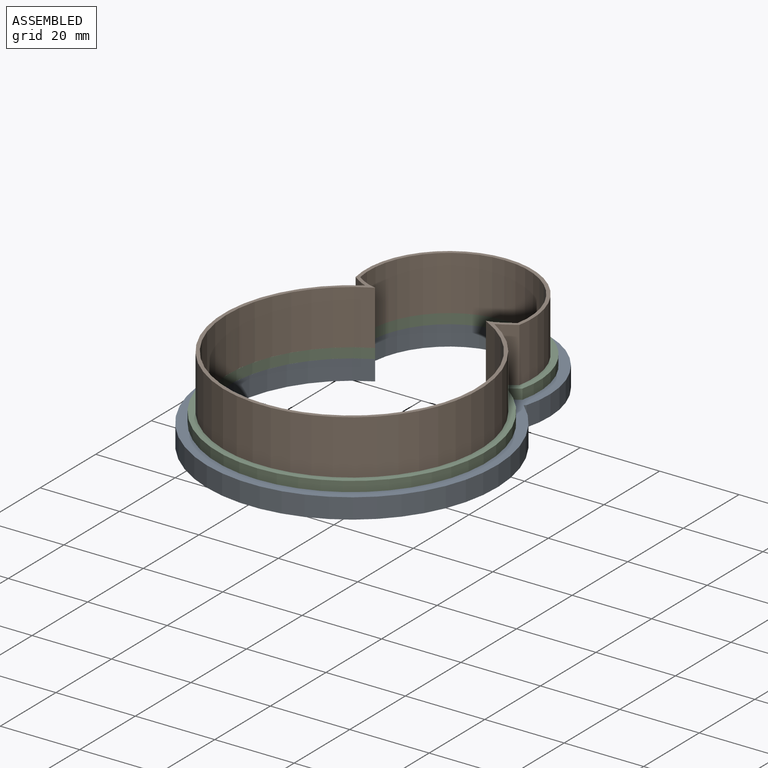
[diagram: assembled view]
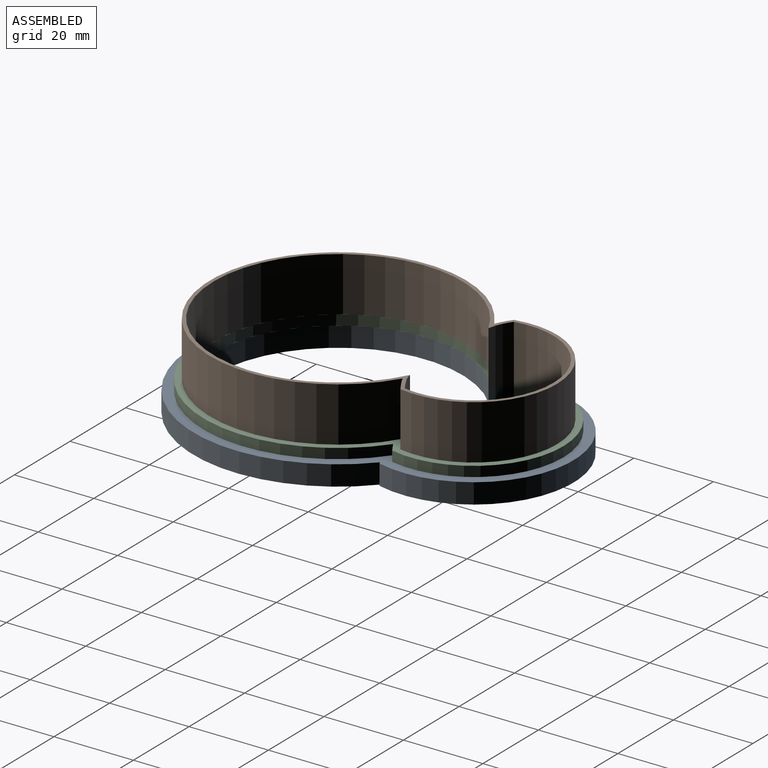
[diagram: assembled view, second angle]
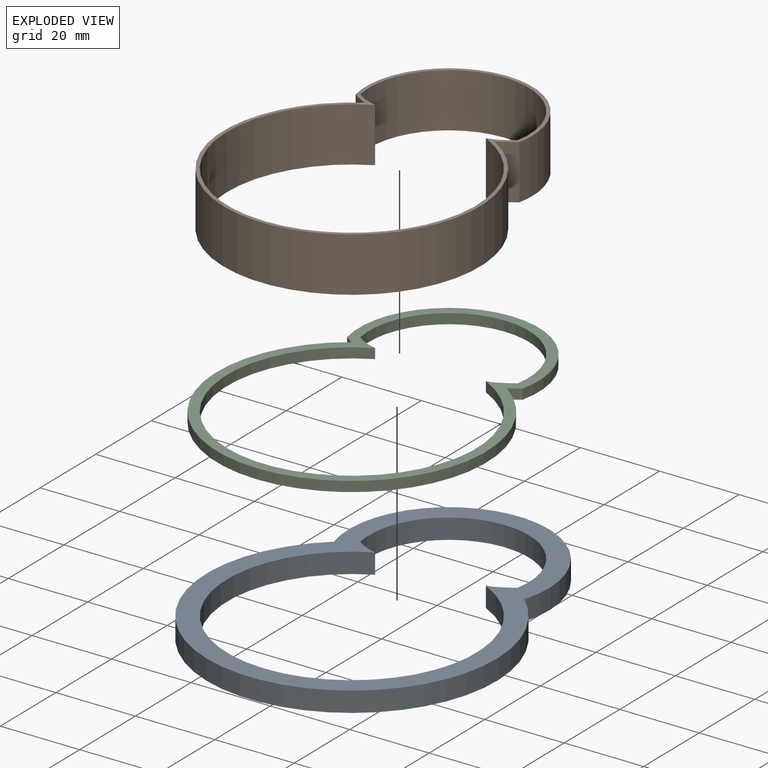
[diagram: exploded view]
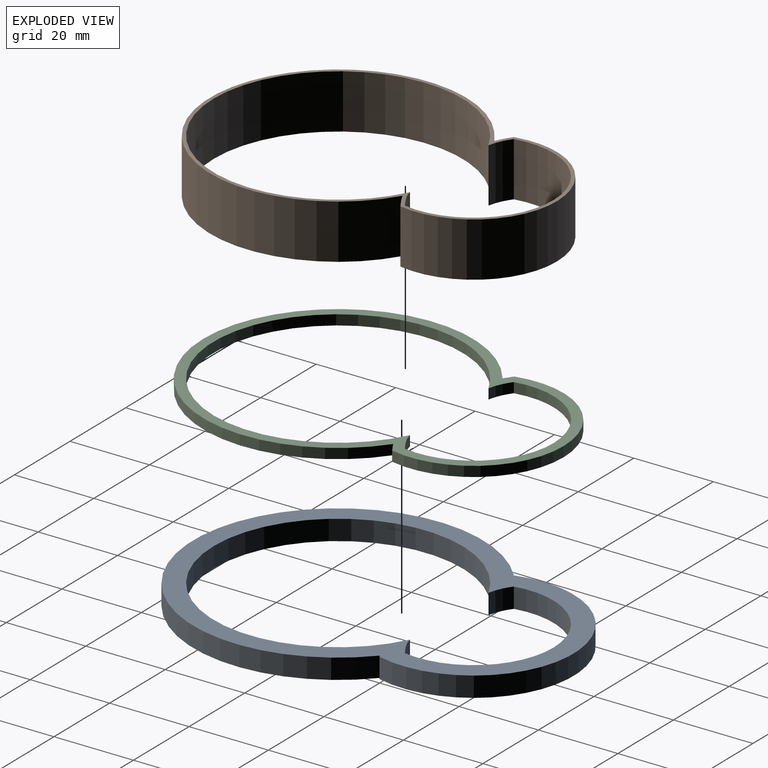
[diagram: exploded view, second angle]
ASSEMBLY  parts=3 mates=2
PART A: 10 faces, bbox 72.9x96x5.1 mm
  f0: extruded ~5.08x0.52mm, area 3.1mm2, adj f1,f3,f4,f5
  f1: cylinder r=25.17mm len=50.34mm, axis (0,0,-1), area 470.7mm2, adj f0,f2,f4,f5
  f2: extruded ~5.08x0.11mm, area 0.7mm2, adj f1,f3,f4,f5
  f3: cylinder r=36.46mm len=72.92mm, axis (0,0,-1), area 898.4mm2, adj f0,f2,f4,f5
  f4: plane 96.03x72.92mm, normal (0,0,1), area 1316.6mm2, adj f0,f1,f2,f3,f6,f7,f8,f9
  f5: plane 96.03x72.92mm, normal (0,0,-1), area 1316.6mm2, adj f0,f1,f2,f3,f6,f7,f8,f9
  f6: extruded ~6x5.08mm, area 34.1mm2, adj f4,f5,f7,f9
  f7: cylinder r=20.09mm len=40.18mm, axis (0,0,-1), area 357.5mm2, adj f4,f5,f6,f8
  f8: extruded ~5.52x5.08mm, area 31.1mm2, adj f4,f5,f7,f9
  f9: cylinder r=31.38mm len=62.76mm, axis (0,0,-1), area 854.2mm2, adj f4,f5,f6,f8
PART B: 10 faces, bbox 64.8x87.9x14 mm
  f0: extruded ~13.72x4.5mm, area 71.2mm2, adj f1,f3,f4,f5
  f1: cylinder r=20.98mm len=41.96mm, axis (0,0,-1), area 1018.3mm2, adj f0,f2,f4,f5
  f2: extruded ~13.72x3.97mm, area 62.9mm2, adj f1,f3,f4,f5
  f3: cylinder r=32.27mm len=64.54mm, axis (0,0,-1), area 2311.4mm2, adj f0,f2,f4,f5
  f4: plane 87.89x64.79mm, normal (0,0,1), area 223.8mm2, adj f0,f1,f2,f3,f6,f7,f8,f9
  f5: plane 87.89x64.79mm, normal (0,0,-1), area 223.8mm2, adj f0,f1,f2,f3,f6,f7,f8,f9
  f6: extruded ~13.72x6mm, area 92mm2, adj f4,f5,f7,f9
  f7: cylinder r=20.09mm len=40.18mm, axis (0,0,-1), area 965.2mm2, adj f4,f5,f6,f8
  f8: extruded ~13.72x5.52mm, area 84mm2, adj f4,f5,f7,f9
  f9: cylinder r=31.38mm len=62.76mm, axis (0,0,-1), area 2306.3mm2, adj f4,f5,f6,f8
PART C: 10 faces, bbox 67.9x91.1x2.6 mm
  f0: extruded ~2.73x2.54mm, area 8.1mm2, adj f1,f3,f4,f5
  f1: cylinder r=22.63mm len=45.26mm, axis (0,0,-1), area 206.9mm2, adj f0,f2,f4,f5
  f2: extruded ~2.54x2.12mm, area 6.6mm2, adj f1,f3,f4,f5
  f3: cylinder r=33.92mm len=67.84mm, axis (0,0,-1), area 435.1mm2, adj f0,f2,f4,f5
  f4: plane 91.05x67.95mm, normal (0,0,1), area 645.3mm2, adj f0,f1,f2,f3,f6,f7,f8,f9
  f5: plane 91.05x67.95mm, normal (0,0,-1), area 645.3mm2, adj f0,f1,f2,f3,f6,f7,f8,f9
  f6: extruded ~6x2.89mm, area 17mm2, adj f4,f5,f7,f9
  f7: cylinder r=20.09mm len=40.18mm, axis (0,0,-1), area 178.7mm2, adj f4,f5,f6,f8
  f8: extruded ~5.52x2.54mm, area 15.5mm2, adj f4,f5,f7,f9
  f9: cylinder r=31.38mm len=62.76mm, axis (0,0,-1), area 427.1mm2, adj f4,f5,f6,f8
PLACE A t=(-81.46,1.87,-7.62)mm
PLACE B at identity
PLACE C t=(81.19,-4.45,-2.54)mm
MATE fastened C.f5 <-> A.f4  axis (0,0,1) through (-16.78,21.66,-2.54)mm
MATE fastened C.f4 <-> B.f5  axis (0,0,1) through (-16.78,21.66,0)mm
